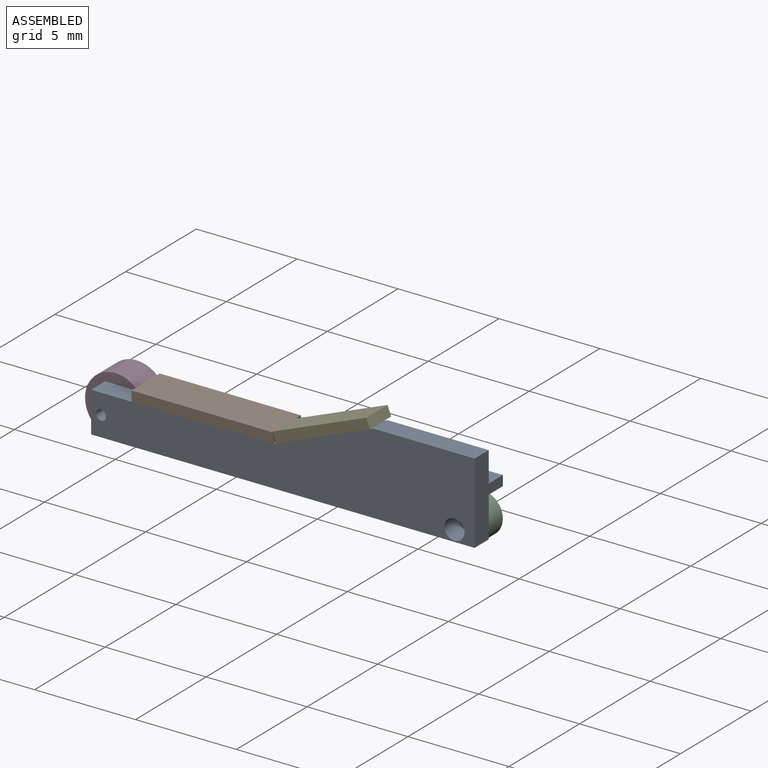
[diagram: assembled view]
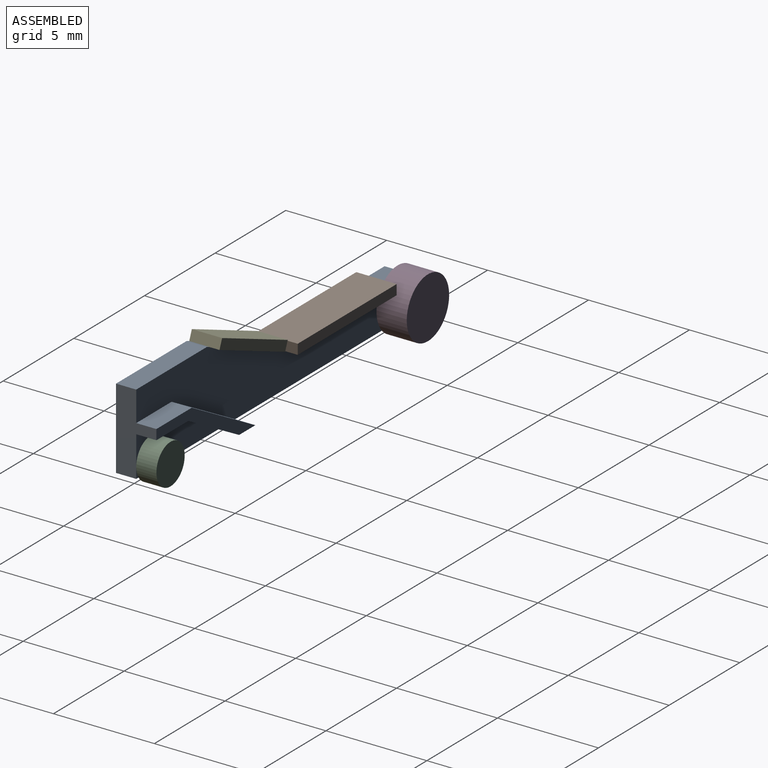
[diagram: assembled view, second angle]
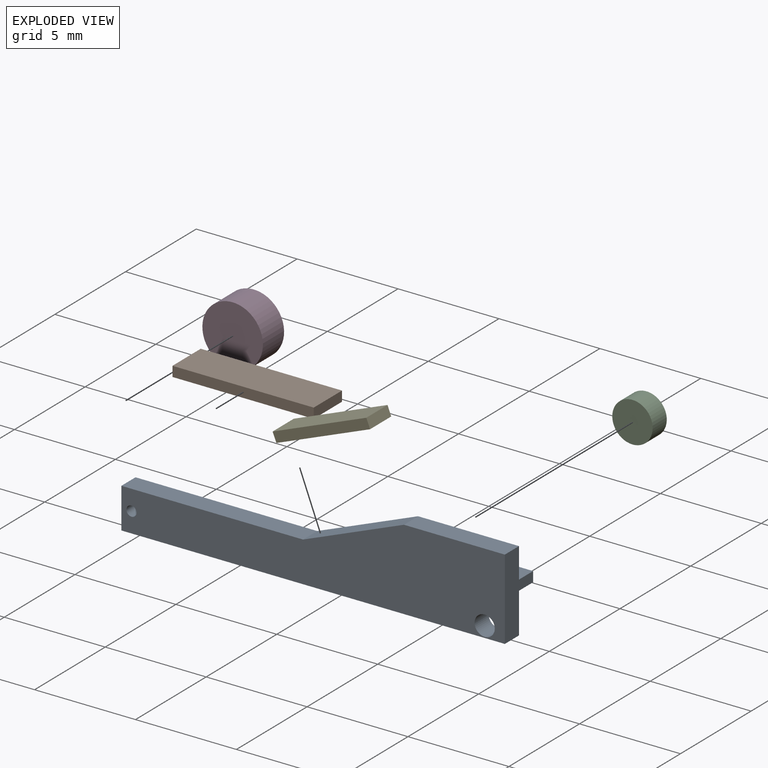
[diagram: exploded view]
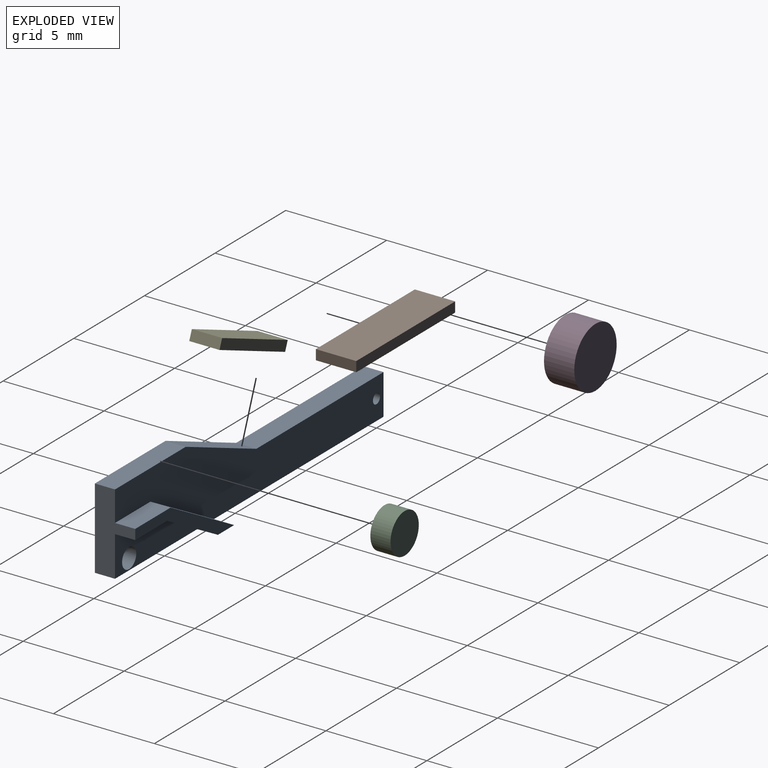
[diagram: exploded view, second angle]
ASSEMBLY  parts=5 mates=4
PART A: 16 faces, bbox 19x2x4 mm
  f0: plane 5.85x2mm, normal (0,1,0), area 7.3mm2, adj f2,f3,f9,f11,f12
  f1: plane 19x4mm, normal (0,1,0), area 40.9mm2, adj f2,f3,f4,f5,f6,f7,f8,f13
  f2: plane 19x2mm, normal (0,0,-1), area 20.1mm2, adj f0,f1,f3,f8,f10,f11,f14,f15
  f3: plane 4x2mm, normal (1,0,0), area 4.5mm2, adj f0,f1,f2,f4,f10,f12,f13,f15
  f4: plane 5x1mm, normal (0,0,1), area 5mm2, adj f1,f3,f5,f10
  f5: plane 5x2mm, normal (-0.37,0,0.93), area 5.4mm2, adj f1,f4,f6,f10
  f6: plane 9x1mm, normal (0,0,1), area 9mm2, adj f1,f5,f8,f10
  f7: cylinder r=0.25mm len=1mm, axis (0,1,0), area 1.6mm2, adj f1,f10
  f8: plane 2x1mm, normal (-1,0,0), area 2mm2, adj f1,f2,f6,f10
  f9: cylinder r=0.5mm len=1mm, axis (0,1,0), area 3.1mm2, adj f0,f10
  f10: plane 19x4mm, normal (0,-1,0), area 52mm2, adj f2,f3,f4,f5,f6,f7,f8,f9
  f11: plane 3.6x2mm, normal (0.49,0,-0.87), area 4.1mm2, adj f0,f2,f12,f15
  f12: plane 2.25x1mm, normal (0,0,-1), area 2.3mm2, adj f0,f3,f11,f15
  f13: plane 2.5x1mm, normal (0,0,1), area 2.5mm2, adj f1,f3,f14,f15
  f14: plane 4.5x2.5mm, normal (-0.49,0,0.87), area 5.1mm2, adj f1,f2,f13,f15
  f15: plane 7x2.5mm, normal (0,1,0), area 3.8mm2, adj f2,f3,f11,f12,f13,f14
PART B: 6 faces, bbox 7x2x0.5 mm
  f0: plane 2x0.5mm, normal (-1,0,0), area 1mm2, adj f1,f3,f4,f5
  f1: plane 7x0.5mm, normal (0,-1,0), area 3.5mm2, adj f0,f2,f4,f5
  f2: plane 2x0.5mm, normal (1,0,0), area 1mm2, adj f1,f3,f4,f5
  f3: plane 7x0.5mm, normal (0,1,0), area 3.5mm2, adj f0,f2,f4,f5
  f4: plane 7x2mm, normal (0,0,1), area 14mm2, adj f0,f1,f2,f3
  f5: plane 7x2mm, normal (0,0,-1), area 14mm2, adj f0,f1,f2,f3
PART C: 3 faces, bbox 2x1x2 mm
  f0: cylinder r=1mm len=2mm, axis (0,1,0), area 6.3mm2, adj f1,f2
  f1: plane 2x2mm, normal (0,-1,0), area 3.1mm2, adj f0
  f2: plane 2x2mm, normal (0,1,0), area 3.1mm2, adj f0
PART D: 3 faces, bbox 3x1.5x3 mm
  f0: cylinder r=1.5mm len=3mm, axis (0,1,0), area 14.1mm2, adj f1,f2
  f1: plane 3x3mm, normal (0,-1,0), area 7.1mm2, adj f0
  f2: plane 3x3mm, normal (0,1,0), area 7.1mm2, adj f0
PART E: 6 faces, bbox 5x1.5x0.5 mm
  f0: plane 1.5x0.5mm, normal (1,0,0), area 0.8mm2, adj f1,f3,f4,f5
  f1: plane 5x0.5mm, normal (0,1,0), area 2.5mm2, adj f0,f2,f4,f5
  f2: plane 1.5x0.5mm, normal (-1,0,0), area 0.8mm2, adj f1,f3,f4,f5
  f3: plane 5x0.5mm, normal (0,-1,0), area 2.5mm2, adj f0,f2,f4,f5
  f4: plane 5x1.5mm, normal (0,0,1), area 7.5mm2, adj f0,f1,f2,f3
  f5: plane 5x1.5mm, normal (0,0,-1), area 7.5mm2, adj f0,f1,f2,f3
PLACE A at identity
PLACE B t=(-10,-1,2)mm
PLACE C t=(6,1,0.55)mm
PLACE D t=(-11.5,1.5,1)mm
PLACE E rot(axis=(0,-1,0),21.8deg) t=(-0.5,-0.25,3)mm
MATE fastened E.f5 <-> A.f5  axis (0.37,0,-0.93) through (-0.5,-0.25,3)mm
MATE cylindrical D.f0 <-> A.f7  axis (0,-1,0) through (-11.5,0,1)mm
MATE fastened B.f5 <-> A.f6  axis (0,0,-1) through (-6.5,0,2)mm
MATE cylindrical C.f0 <-> A.f9  axis (0,-1,0) through (6,0,0.55)mm
